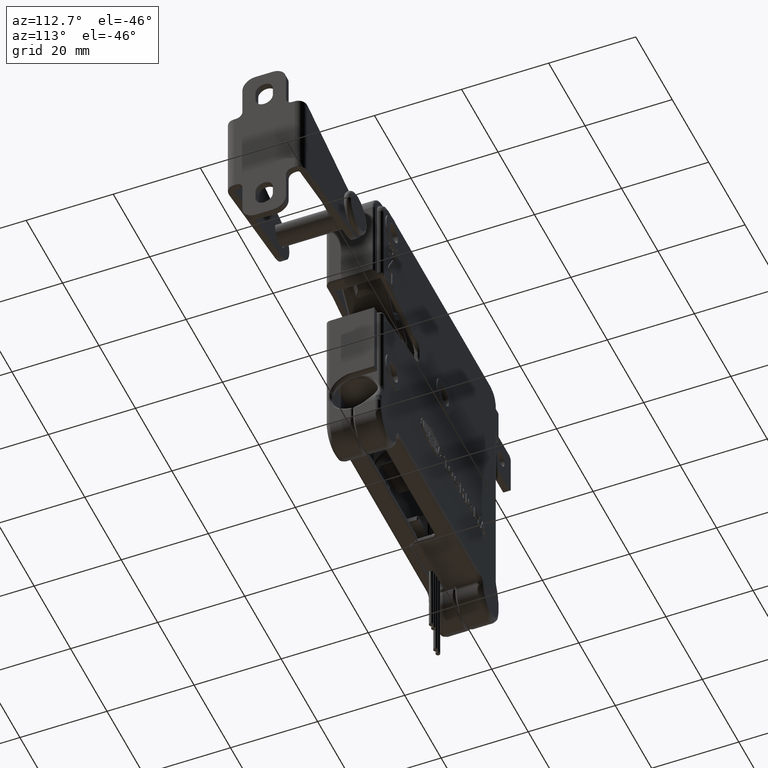
[diagram: clean part render]
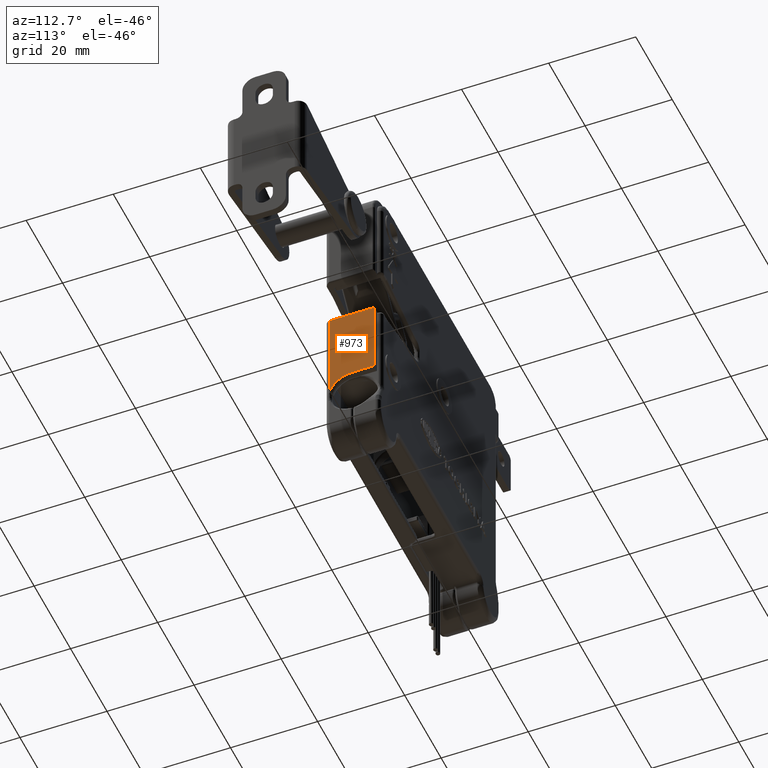
[diagram: same view with one face highlighted and labeled with its STEP entity id]
A machine part, auxiliary view. The second image highlights one B-rep face of the part: STEP entity #973.
In plain terms, the highlighted planar face has unit normal (1, 0, 0).
Its self-contained STEP definition (entity closure, byte-faithful):
#973=ADVANCED_FACE('',(#10968),#10967,.T.);
#10967=PLANE('',#33813);
#10968=FACE_OUTER_BOUND('',#33814,.T.);
#33810=CARTESIAN_POINT('',(1.50000000000E+00,-2.25000000000E-01,-2.95217060293E+01));
#33811=DIRECTION('',(1.00000000000E+00,0.00000000000E+00,-0.00000000000E+00));
#33812=DIRECTION('',(0.00000000000E+00,0.00000000000E+00,1.00000000000E+00));
#33813=AXIS2_PLACEMENT_3D('',#33810,#33811,#33812);
#33814=EDGE_LOOP('',(#47479,#47480,#47481,#47482,#47483));
#47479=ORIENTED_EDGE('',*,*,#57304,.T.);
#47480=ORIENTED_EDGE('',*,*,#57305,.T.);
#47481=ORIENTED_EDGE('',*,*,#54930,.F.);
#47482=ORIENTED_EDGE('',*,*,#57306,.T.);
#47483=ORIENTED_EDGE('',*,*,#57307,.T.);
#54930=EDGE_CURVE('',#67112,#67119,#67120,.T.);
#57304=EDGE_CURVE('',#63019,#83117,#83118,.T.);
#57305=EDGE_CURVE('',#83117,#67119,#83124,.T.);
#57306=EDGE_CURVE('',#67112,#83130,#83131,.T.);
#57307=EDGE_CURVE('',#83130,#63019,#83137,.T.);
#63019=VERTEX_POINT('',#101177);
#67112=VERTEX_POINT('',#103802);
#67119=VERTEX_POINT('',#103806);
#67120=LINE('',#103807,#103808);
#83117=VERTEX_POINT('',#113930);
#83118=CIRCLE('',#113934,5.50000000000E+00);
#83124=LINE('',#113935,#113936);
#83130=VERTEX_POINT('',#113938);
#83131=LINE('',#113939,#113940);
#83137=LINE('',#113942,#113943);
#101177=CARTESIAN_POINT('',(1.50000000000E+00,-1.15000000000E+01,-2.73606418448E+01));
#103802=CARTESIAN_POINT('',(1.50000000000E+00,-1.25000000001E+00,-5.74999999999E+00));
#103806=CARTESIAN_POINT('',(1.50000000000E+00,-1.25000000000E+00,-2.35000014759E+01));
#103807=CARTESIAN_POINT('',(1.50000000000E+00,-1.25000000000E+00,-5.74999999999E+00));
#103808=VECTOR('',#103809,1.77500014759E+01);
#103809=DIRECTION('',(1.15087898335E-15,0.00000000000E+00,-1.00000000000E+00));
#113930=CARTESIAN_POINT('',(1.50000000000E+00,-6.25000000000E+00,-2.35000014759E+01));
#113931=CARTESIAN_POINT('',(1.50000000000E+00,-6.25000000000E+00,-2.90000014759E+01));
#113932=DIRECTION('',(-1.00000000000E+00,-0.00000000000E+00,0.00000000000E+00));
#113933=DIRECTION('',(-0.00000000000E+00,-0.00000000000E+00,-1.00000000000E+00));
#113934=AXIS2_PLACEMENT_3D('',#113931,#113932,#113933);
#113935=CARTESIAN_POINT('',(1.50000000000E+00,-6.25000000000E+00,-2.35000014759E+01));
#113936=VECTOR('',#113937,5.00000000000E+00);
#113937=DIRECTION('',(0.00000000000E+00,1.00000000000E+00,0.00000000000E+00));
#113938=CARTESIAN_POINT('',(1.50000000000E+00,-1.15000000000E+01,-5.74999999999E+00));
#113939=CARTESIAN_POINT('',(1.50000000000E+00,-1.25000000000E+00,-5.74999999999E+00));
#113940=VECTOR('',#113941,1.02500000000E+01);
#113941=DIRECTION('',(0.00000000000E+00,-1.00000000000E+00,0.00000000000E+00));
#113942=CARTESIAN_POINT('',(1.50000000000E+00,-1.15000000000E+01,-5.74999999999E+00));
#113943=VECTOR('',#113944,2.16106418448E+01);
#113944=DIRECTION('',(0.00000000000E+00,0.00000000000E+00,-1.00000000000E+00));